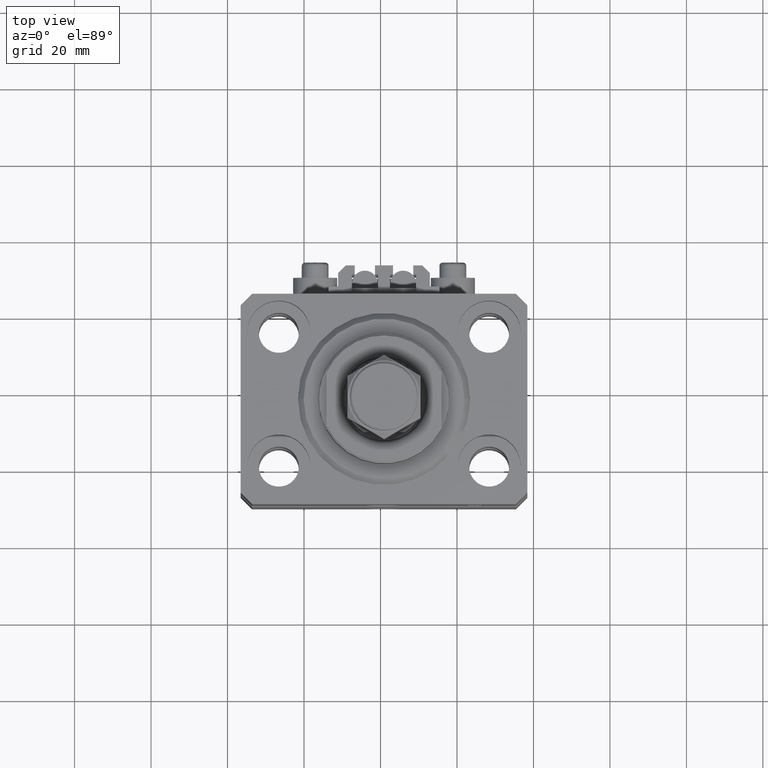
[diagram: clean part render]
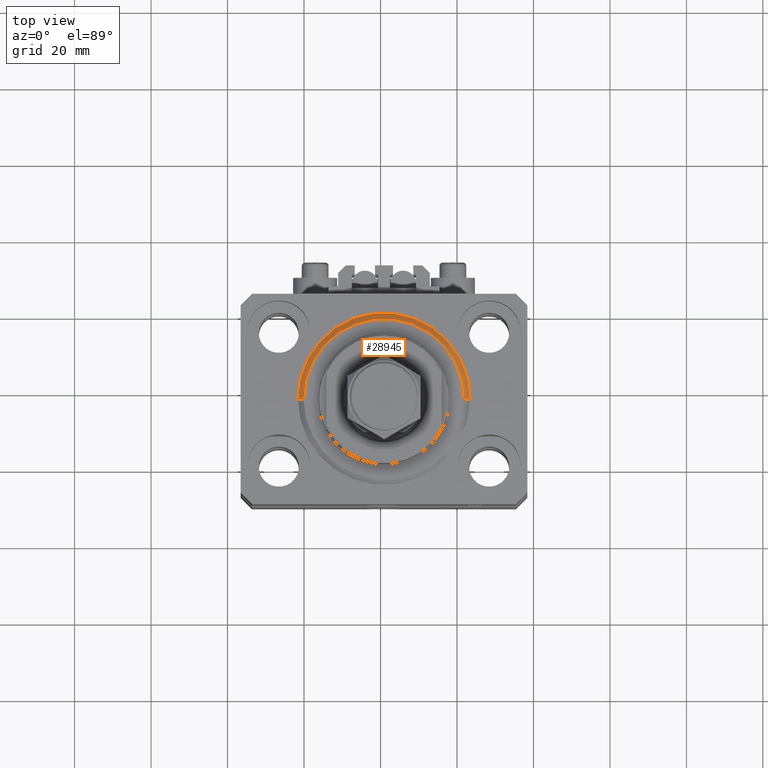
[diagram: same view with one face highlighted and labeled with its STEP entity id]
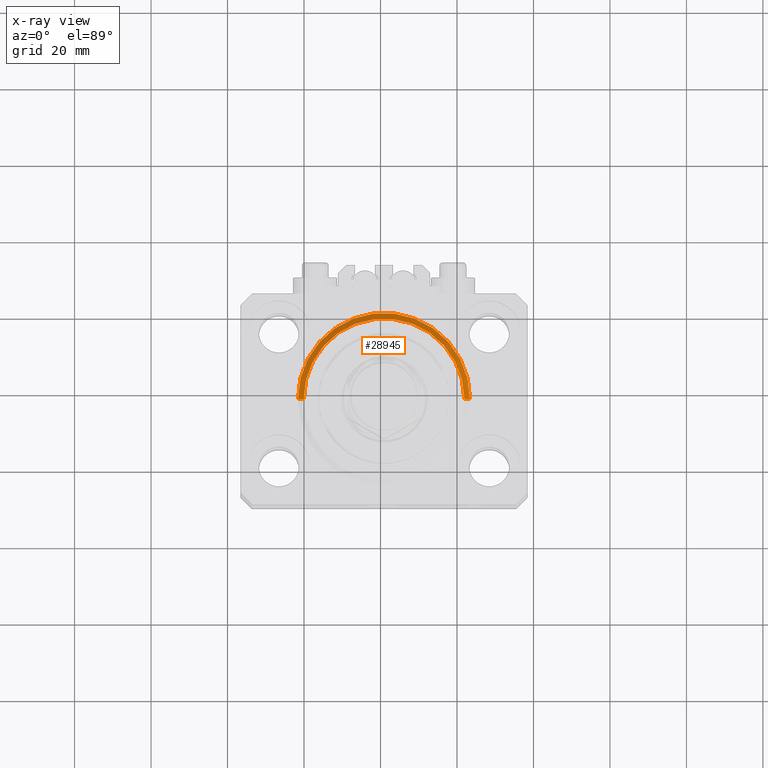
[diagram: x-ray of the same camera — body ghosted, the highlighted face saturated]
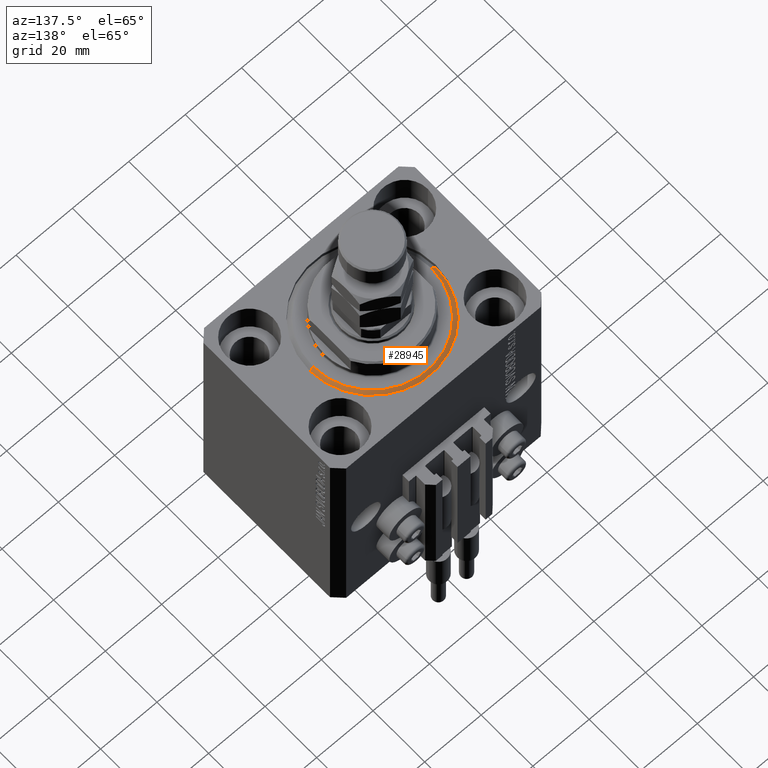
[diagram: same view with one face highlighted and labeled with its STEP entity id]
A machine part, top view. The second image highlights one B-rep face of the part: STEP entity #28945.
The next image is the same camera in x-ray: the body ghosted, the highlighted face saturated — about 0% of this face is hidden behind the body in this view.
A second angle (auxiliary view) of the same face is appended — the face is thin or edge-on in the first view.
In plain terms, the highlighted conical surface has half-angle 45 deg.
Its self-contained STEP definition (entity closure, byte-faithful):
#28 = FACE_OUTER_BOUND ( 'NONE', #14081, .T. ) ;
#813 = ORIENTED_EDGE ( 'NONE', *, *, #33728, .F. ) ;
#2132 = ORIENTED_EDGE ( 'NONE', *, *, #13310, .T. ) ;
#2478 = CARTESIAN_POINT ( 'NONE',  ( -20.99999999999995381, 2.663606788145490261E-15, 0.000000000000000000 ) ) ;
#3230 = LINE ( 'NONE', #25925, #39664 ) ;
#8451 = CARTESIAN_POINT ( 'NONE',  ( 22.50000000000000355, 2.755455298081544383E-15, 1.500000000000039524 ) ) ;
#10750 = CARTESIAN_POINT ( 'NONE',  ( 0.000000000000000000, 0.000000000000000000, 1.500000000000039524 ) ) ;
#13310 = EDGE_CURVE ( 'NONE', #22572, #44807, #21285, .T. ) ;
#14081 = EDGE_LOOP ( 'NONE', ( #49315, #2132, #16299, #813 ) ) ;
#14459 = DIRECTION ( 'NONE',  ( 0.7071067811865500152, 0.000000000000000000, 0.7071067811865451302 ) ) ;
#15463 = DIRECTION ( 'NONE',  ( -0.000000000000000000, -0.000000000000000000, 1.000000000000000000 ) ) ;
#15705 = DIRECTION ( 'NONE',  ( 1.000000000000000000, 0.000000000000000000, 0.000000000000000000 ) ) ;
#16024 = CARTESIAN_POINT ( 'NONE',  ( 0.000000000000000000, 0.000000000000000000, 0.000000000000000000 ) ) ;
#16299 = ORIENTED_EDGE ( 'NONE', *, *, #24630, .F. ) ;
#17483 = DIRECTION ( 'NONE',  ( -0.000000000000000000, -0.000000000000000000, 1.000000000000000000 ) ) ;
#18733 = AXIS2_PLACEMENT_3D ( 'NONE', #10750, #17483, #21960 ) ;
#21151 = AXIS2_PLACEMENT_3D ( 'NONE', #34426, #15463, #15705 ) ;
#21285 = LINE ( 'NONE', #32283, #43686 ) ;
#21960 = DIRECTION ( 'NONE',  ( 1.000000000000000000, 0.000000000000000000, 0.000000000000000000 ) ) ;
#22572 = VERTEX_POINT ( 'NONE', #2478 ) ;
#22761 = CARTESIAN_POINT ( 'NONE',  ( -22.50000000000000355, 0.000000000000000000, 1.500000000000039524 ) ) ;
#24630 = EDGE_CURVE ( 'NONE', #29834, #44807, #42634, .T. ) ;
#25808 = EDGE_CURVE ( 'NONE', #22572, #44784, #39494, .T. ) ;
#25925 = CARTESIAN_POINT ( 'NONE',  ( 22.50000000000000355, 0.000000000000000000, 1.500000000000039524 ) ) ;
#28718 = DIRECTION ( 'NONE',  ( 1.000000000000000000, 0.000000000000000000, 0.000000000000000000 ) ) ;
#28945 = ADVANCED_FACE ( 'NONE', ( #28 ), #42664, .T. ) ;
#29834 = VERTEX_POINT ( 'NONE', #8451 ) ;
#31239 = DIRECTION ( 'NONE',  ( -0.000000000000000000, -0.000000000000000000, -1.000000000000000000 ) ) ;
#32283 = CARTESIAN_POINT ( 'NONE',  ( -22.50000000000000355, 2.755455298081545172E-15, 1.500000000000039524 ) ) ;
#32516 = CARTESIAN_POINT ( 'NONE',  ( 20.99999999999995381, 0.000000000000000000, 0.000000000000000000 ) ) ;
#33728 = EDGE_CURVE ( 'NONE', #44784, #29834, #3230, .T. ) ;
#34426 = CARTESIAN_POINT ( 'NONE',  ( 0.000000000000000000, 0.000000000000000000, 1.500000000000039524 ) ) ;
#39494 = CIRCLE ( 'NONE', #47414, 20.99999999999995381 ) ;
#39664 = VECTOR ( 'NONE', #14459, 1000.000000000000114 ) ;
#42634 = CIRCLE ( 'NONE', #18733, 22.50000000000000355 ) ;
#42664 = CONICAL_SURFACE ( 'NONE', #21151, 22.50000000000000355, 0.7853981633974517207 ) ;
#43686 = VECTOR ( 'NONE', #43984, 1000.000000000000114 ) ;
#43984 = DIRECTION ( 'NONE',  ( -0.7071067811865500152, 8.659560562354962440E-17, 0.7071067811865451302 ) ) ;
#44784 = VERTEX_POINT ( 'NONE', #32516 ) ;
#44807 = VERTEX_POINT ( 'NONE', #22761 ) ;
#47414 = AXIS2_PLACEMENT_3D ( 'NONE', #16024, #31239, #28718 ) ;
#49315 = ORIENTED_EDGE ( 'NONE', *, *, #25808, .F. ) ;